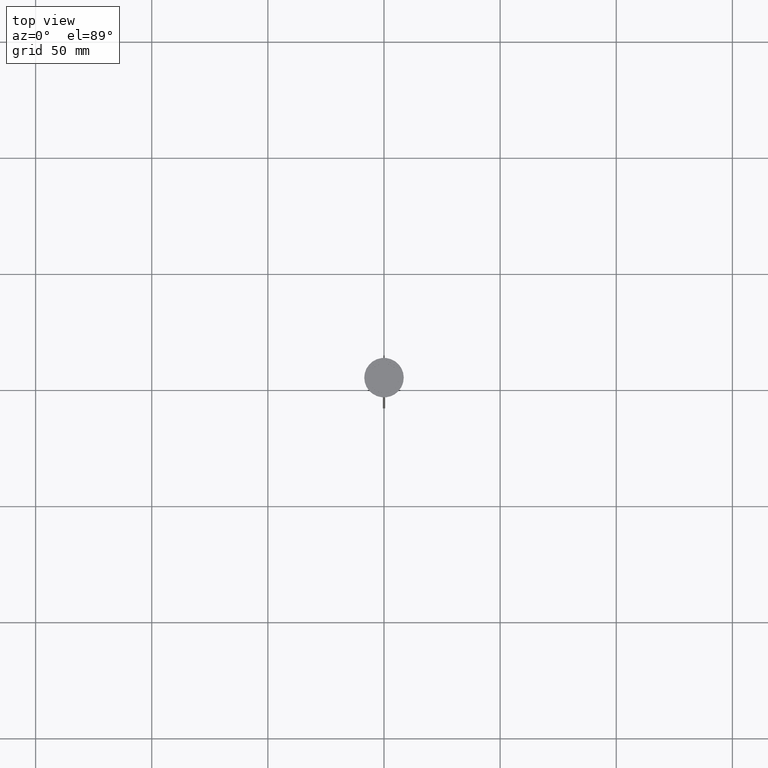
[diagram: clean part render]
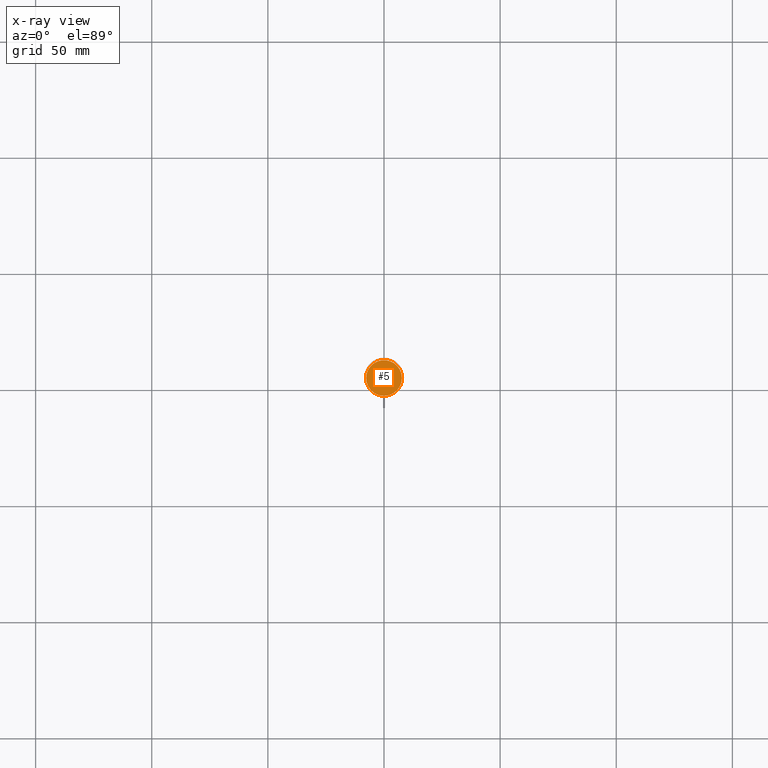
[diagram: x-ray — body ghosted, one internal face saturated and labeled with its STEP entity id]
A machine part, top view, then the same camera in x-ray: the body is ghosted and one INTERNAL B-rep face — a face not visible from any outside direction — is saturated and labeled: STEP entity #5.
In plain terms, the highlighted planar face has unit normal (0, 0, -1).
Its self-contained STEP definition (entity closure, byte-faithful):
#5 = ADVANCED_FACE ( 'NONE', ( #93 ), #1583, .F. ) ;
#93 = FACE_OUTER_BOUND ( 'NONE', #108, .T. ) ;
#108 = EDGE_LOOP ( 'NONE', ( #1985, #1741 ) ) ;
#115 = DIRECTION ( 'NONE',  ( -1.000000000000000000, 0.000000000000000000, 0.000000000000000000 ) ) ;
#297 = AXIS2_PLACEMENT_3D ( 'NONE', #2114, #1556, #115 ) ;
#513 = VERTEX_POINT ( 'NONE', #804 ) ;
#532 = CARTESIAN_POINT ( 'NONE',  ( 7.700000000000001954, 9.613477373306725302E-16, -12.00000000000000000 ) ) ;
#793 = VERTEX_POINT ( 'NONE', #532 ) ;
#804 = CARTESIAN_POINT ( 'NONE',  ( -7.700000000000001954, 0.000000000000000000, -12.00000000000000000 ) ) ;
#813 = CARTESIAN_POINT ( 'NONE',  ( 0.000000000000000000, 0.000000000000000000, -12.00000000000000000 ) ) ;
#835 = CIRCLE ( 'NONE', #297, 7.700000000000001954 ) ;
#939 = AXIS2_PLACEMENT_3D ( 'NONE', #2171, #1071, #1477 ) ;
#1071 = DIRECTION ( 'NONE',  ( -0.000000000000000000, -0.000000000000000000, 1.000000000000000000 ) ) ;
#1113 = AXIS2_PLACEMENT_3D ( 'NONE', #813, #1398, #2166 ) ;
#1398 = DIRECTION ( 'NONE',  ( 0.000000000000000000, 0.000000000000000000, -1.000000000000000000 ) ) ;
#1470 = EDGE_CURVE ( 'NONE', #513, #793, #1866, .T. ) ;
#1477 = DIRECTION ( 'NONE',  ( -1.000000000000000000, 0.000000000000000000, 0.000000000000000000 ) ) ;
#1556 = DIRECTION ( 'NONE',  ( -0.000000000000000000, -0.000000000000000000, 1.000000000000000000 ) ) ;
#1583 = PLANE ( 'NONE',  #1113 ) ;
#1741 = ORIENTED_EDGE ( 'NONE', *, *, #1824, .T. ) ;
#1824 = EDGE_CURVE ( 'NONE', #793, #513, #835, .T. ) ;
#1866 = CIRCLE ( 'NONE', #939, 7.700000000000001954 ) ;
#1985 = ORIENTED_EDGE ( 'NONE', *, *, #1470, .T. ) ;
#2114 = CARTESIAN_POINT ( 'NONE',  ( 0.000000000000000000, 0.000000000000000000, -12.00000000000000000 ) ) ;
#2166 = DIRECTION ( 'NONE',  ( -1.000000000000000000, 0.000000000000000000, -0.000000000000000000 ) ) ;
#2171 = CARTESIAN_POINT ( 'NONE',  ( 0.000000000000000000, 0.000000000000000000, -12.00000000000000000 ) ) ;